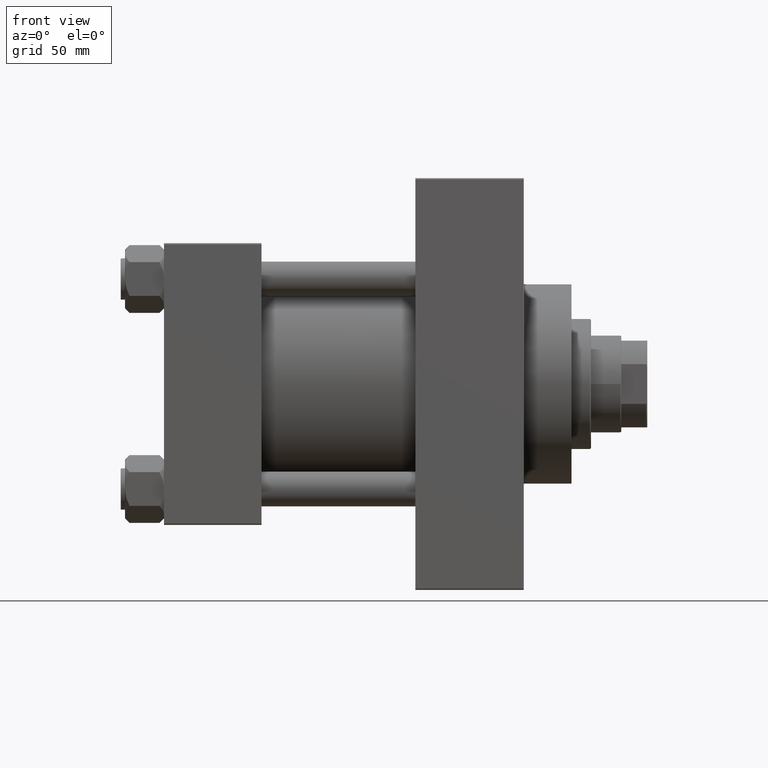
[diagram: clean part render]
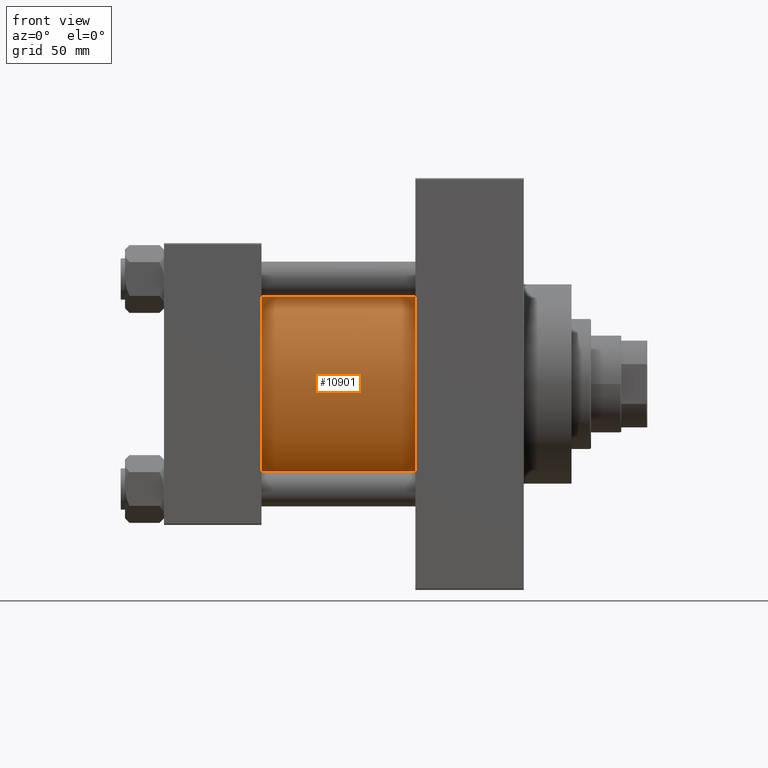
[diagram: same view with one face highlighted and labeled with its STEP entity id]
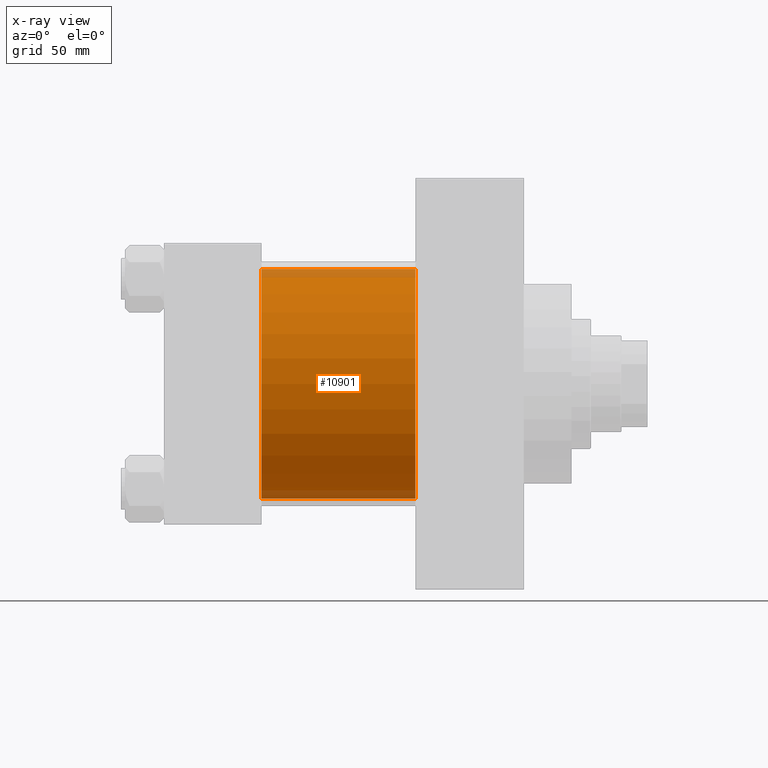
[diagram: x-ray of the same camera — body ghosted, the highlighted face saturated]
A machine part, front view. The second image highlights one B-rep face of the part: STEP entity #10901.
The next image is the same camera in x-ray: the body ghosted, the highlighted face saturated — about 7% of this face is hidden behind the body in this view.
In plain terms, the highlighted cylindrical surface (partial cylindrical patch) has radius 53 mm, axis along (-1, -0, -0).
Its self-contained STEP definition (entity closure, byte-faithful):
#1430 = CARTESIAN_POINT ( 'NONE',  ( 45.00000000000000000, -2.602085213965210642E-15, 0.000000000000000000 ) ) ;
#2258 = LINE ( 'NONE', #20884, #5186 ) ;
#3314 = AXIS2_PLACEMENT_3D ( 'NONE', #43876, #16435, #40090 ) ;
#3646 = CARTESIAN_POINT ( 'NONE',  ( 45.00000000000000000, 3.888542821515762466E-15, -53.00000000000000711 ) ) ;
#5104 = FACE_OUTER_BOUND ( 'NONE', #11446, .T. ) ;
#5186 = VECTOR ( 'NONE', #10296, 1000.000000000000000 ) ;
#5239 = VERTEX_POINT ( 'NONE', #34542 ) ;
#5835 = VERTEX_POINT ( 'NONE', #3646 ) ;
#8185 = CARTESIAN_POINT ( 'NONE',  ( 115.9999999999999858, -2.602085213965210642E-15, 53.00000000000000711 ) ) ;
#9705 = DIRECTION ( 'NONE',  ( 0.000000000000000000, 0.000000000000000000, 1.000000000000000000 ) ) ;
#10296 = DIRECTION ( 'NONE',  ( -1.000000000000000000, -0.000000000000000000, -0.000000000000000000 ) ) ;
#10784 = CARTESIAN_POINT ( 'NONE',  ( 115.9999999999999858, -2.602085213965210642E-15, 0.000000000000000000 ) ) ;
#10901 = ADVANCED_FACE ( 'NONE', ( #5104 ), #39112, .T. ) ;
#11446 = EDGE_LOOP ( 'NONE', ( #42155, #40053, #40555, #47831 ) ) ;
#11632 = VERTEX_POINT ( 'NONE', #23134 ) ;
#11892 = EDGE_CURVE ( 'NONE', #5239, #5835, #38193, .T. ) ;
#13800 = VERTEX_POINT ( 'NONE', #8185 ) ;
#14307 = DIRECTION ( 'NONE',  ( 0.000000000000000000, 0.000000000000000000, -1.000000000000000000 ) ) ;
#15637 = AXIS2_PLACEMENT_3D ( 'NONE', #1430, #39942, #9705 ) ;
#16435 = DIRECTION ( 'NONE',  ( -1.000000000000000000, -0.000000000000000000, -0.000000000000000000 ) ) ;
#19072 = AXIS2_PLACEMENT_3D ( 'NONE', #10784, #45030, #14307 ) ;
#19894 = CIRCLE ( 'NONE', #19072, 53.00000000000000711 ) ;
#20884 = CARTESIAN_POINT ( 'NONE',  ( 115.9999999999999858, -2.602085213965210642E-15, 53.00000000000000711 ) ) ;
#23134 = CARTESIAN_POINT ( 'NONE',  ( 45.00000000000000000, -2.602085213965210642E-15, 53.00000000000000711 ) ) ;
#23658 = CIRCLE ( 'NONE', #15637, 53.00000000000000711 ) ;
#26638 = VECTOR ( 'NONE', #33915, 1000.000000000000000 ) ;
#30393 = CARTESIAN_POINT ( 'NONE',  ( 115.9999999999999858, 3.888542821515762466E-15, -53.00000000000000711 ) ) ;
#33915 = DIRECTION ( 'NONE',  ( -1.000000000000000000, -0.000000000000000000, -0.000000000000000000 ) ) ;
#34542 = CARTESIAN_POINT ( 'NONE',  ( 115.9999999999999858, 3.888542821515762466E-15, -53.00000000000000711 ) ) ;
#35275 = EDGE_CURVE ( 'NONE', #13800, #11632, #2258, .T. ) ;
#38193 = LINE ( 'NONE', #30393, #26638 ) ;
#38316 = EDGE_CURVE ( 'NONE', #11632, #5835, #23658, .T. ) ;
#39112 = CYLINDRICAL_SURFACE ( 'NONE', #3314, 53.00000000000000711 ) ;
#39942 = DIRECTION ( 'NONE',  ( 1.000000000000000000, -0.000000000000000000, 0.000000000000000000 ) ) ;
#40053 = ORIENTED_EDGE ( 'NONE', *, *, #45353, .F. ) ;
#40090 = DIRECTION ( 'NONE',  ( 0.000000000000000000, 0.000000000000000000, 1.000000000000000000 ) ) ;
#40555 = ORIENTED_EDGE ( 'NONE', *, *, #35275, .T. ) ;
#42155 = ORIENTED_EDGE ( 'NONE', *, *, #11892, .F. ) ;
#43876 = CARTESIAN_POINT ( 'NONE',  ( 115.9999999999999858, -2.602085213965210642E-15, 0.000000000000000000 ) ) ;
#45030 = DIRECTION ( 'NONE',  ( 1.000000000000000000, 0.000000000000000000, 0.000000000000000000 ) ) ;
#45353 = EDGE_CURVE ( 'NONE', #13800, #5239, #19894, .T. ) ;
#47831 = ORIENTED_EDGE ( 'NONE', *, *, #38316, .T. ) ;